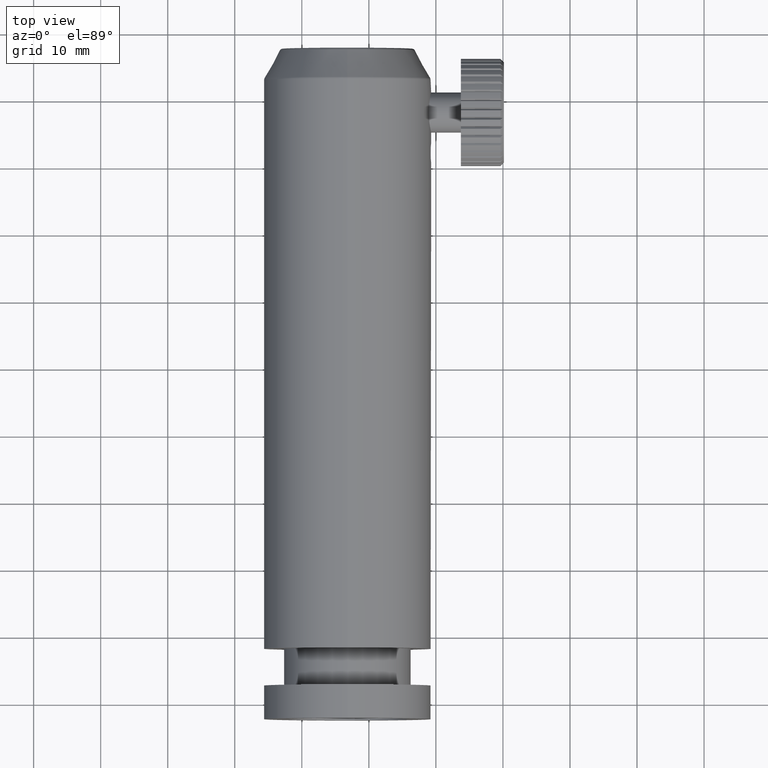
[diagram: clean part render]
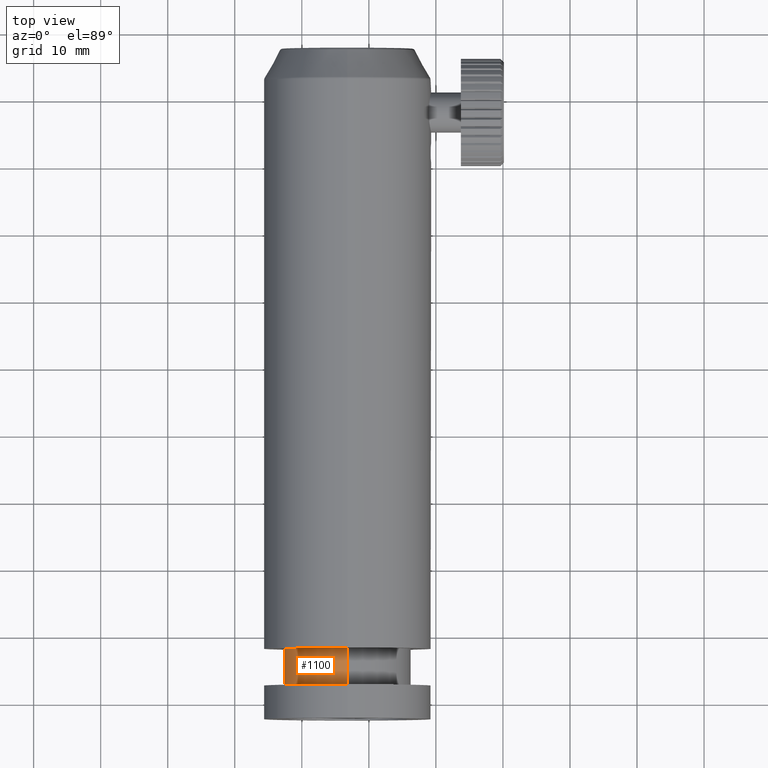
[diagram: same view with one face highlighted and labeled with its STEP entity id]
A machine part, top view. The second image highlights one B-rep face of the part: STEP entity #1100.
In plain terms, the highlighted cylindrical surface (partial cylindrical patch) has radius 9.5 mm, axis along (-0, -1, -0).
Its self-contained STEP definition (entity closure, byte-faithful):
#15 = CARTESIAN_POINT ( 'NONE',  ( -3.204778668925413854, -1.813612059609843952, 1.686509214775364569E-15 ) ) ;
#38 = CARTESIAN_POINT ( 'NONE',  ( -3.204778668925413854, -12.31361205960984329, -9.499999999999998224 ) ) ;
#462 = VERTEX_POINT ( 'NONE', #3330 ) ;
#530 = EDGE_CURVE ( 'NONE', #1354, #6662, #8390, .T. ) ;
#619 = CIRCLE ( 'NONE', #5791, 9.500000000000000000 ) ;
#1100 = ADVANCED_FACE ( 'NONE', ( #4776 ), #7541, .T. ) ;
#1354 = VERTEX_POINT ( 'NONE', #5751 ) ;
#1830 = DIRECTION ( 'NONE',  ( -0.0000000000000000000, -1.000000000000000000, -0.0000000000000000000 ) ) ;
#2034 = DIRECTION ( 'NONE',  ( -0.0000000000000000000, -1.000000000000000000, -0.0000000000000000000 ) ) ;
#2094 = ORIENTED_EDGE ( 'NONE', *, *, #2217, .T. ) ;
#2124 = LINE ( 'NONE', #38, #3714 ) ;
#2145 = DIRECTION ( 'NONE',  ( 0.0000000000000000000, 0.0000000000000000000, -1.000000000000000000 ) ) ;
#2217 = EDGE_CURVE ( 'NONE', #4649, #6662, #2124, .T. ) ;
#2424 = ORIENTED_EDGE ( 'NONE', *, *, #4224, .T. ) ;
#3084 = EDGE_CURVE ( 'NONE', #462, #1354, #5687, .T. ) ;
#3292 = DIRECTION ( 'NONE',  ( 0.0000000000000000000, 0.0000000000000000000, -1.000000000000000000 ) ) ;
#3330 = CARTESIAN_POINT ( 'NONE',  ( -3.204778668925412521, -1.813612059609843952, 9.500000000000001776 ) ) ;
#3338 = CARTESIAN_POINT ( 'NONE',  ( -3.204778668925413854, -12.31361205960984329, 1.686509214775364569E-15 ) ) ;
#3714 = VECTOR ( 'NONE', #2034, 1000.000000000000000 ) ;
#3988 = ORIENTED_EDGE ( 'NONE', *, *, #530, .F. ) ;
#4224 = EDGE_CURVE ( 'NONE', #462, #4649, #619, .T. ) ;
#4523 = CARTESIAN_POINT ( 'NONE',  ( -3.204778668925413854, -7.313612059609842397, -9.499999999999998224 ) ) ;
#4649 = VERTEX_POINT ( 'NONE', #8573 ) ;
#4650 = ORIENTED_EDGE ( 'NONE', *, *, #3084, .F. ) ;
#4770 = DIRECTION ( 'NONE',  ( -0.0000000000000000000, -1.000000000000000000, -0.0000000000000000000 ) ) ;
#4776 = FACE_OUTER_BOUND ( 'NONE', #6033, .T. ) ;
#5376 = DIRECTION ( 'NONE',  ( 0.0000000000000000000, 0.0000000000000000000, -1.000000000000000000 ) ) ;
#5667 = AXIS2_PLACEMENT_3D ( 'NONE', #3338, #1830, #3292 ) ;
#5687 = LINE ( 'NONE', #7157, #5811 ) ;
#5751 = CARTESIAN_POINT ( 'NONE',  ( -3.204778668925412521, -7.313612059609842397, 9.500000000000001776 ) ) ;
#5791 = AXIS2_PLACEMENT_3D ( 'NONE', #15, #8496, #2145 ) ;
#5811 = VECTOR ( 'NONE', #7758, 1000.000000000000000 ) ;
#6033 = EDGE_LOOP ( 'NONE', ( #4650, #2424, #2094, #3988 ) ) ;
#6456 = AXIS2_PLACEMENT_3D ( 'NONE', #8338, #4770, #5376 ) ;
#6662 = VERTEX_POINT ( 'NONE', #4523 ) ;
#7157 = CARTESIAN_POINT ( 'NONE',  ( -3.204778668925412521, -12.31361205960984329, 9.500000000000001776 ) ) ;
#7541 = CYLINDRICAL_SURFACE ( 'NONE', #5667, 9.500000000000000000 ) ;
#7758 = DIRECTION ( 'NONE',  ( -0.0000000000000000000, -1.000000000000000000, -0.0000000000000000000 ) ) ;
#8338 = CARTESIAN_POINT ( 'NONE',  ( -3.204778668925413854, -7.313612059609842397, 1.686509214775364569E-15 ) ) ;
#8390 = CIRCLE ( 'NONE', #6456, 9.500000000000000000 ) ;
#8496 = DIRECTION ( 'NONE',  ( -0.0000000000000000000, -1.000000000000000000, -0.0000000000000000000 ) ) ;
#8573 = CARTESIAN_POINT ( 'NONE',  ( -3.204778668925413854, -1.813612059609843952, -9.499999999999998224 ) ) ;